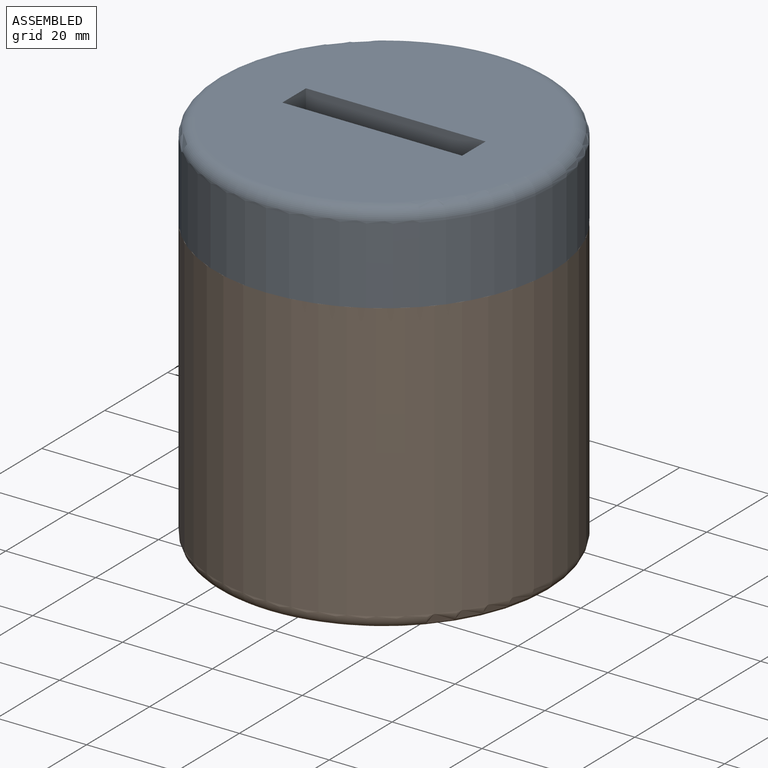
[diagram: assembled view]
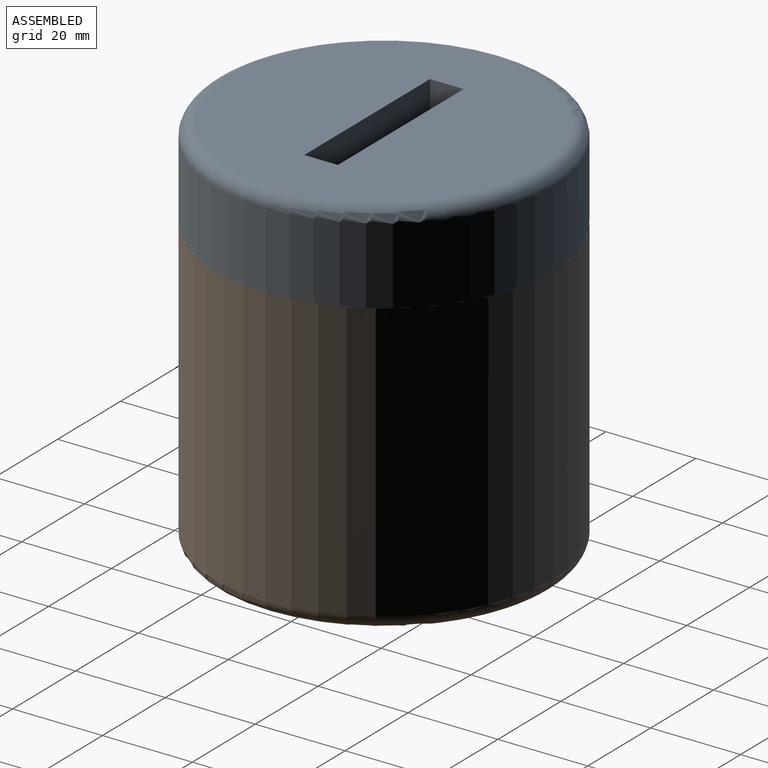
[diagram: assembled view, second angle]
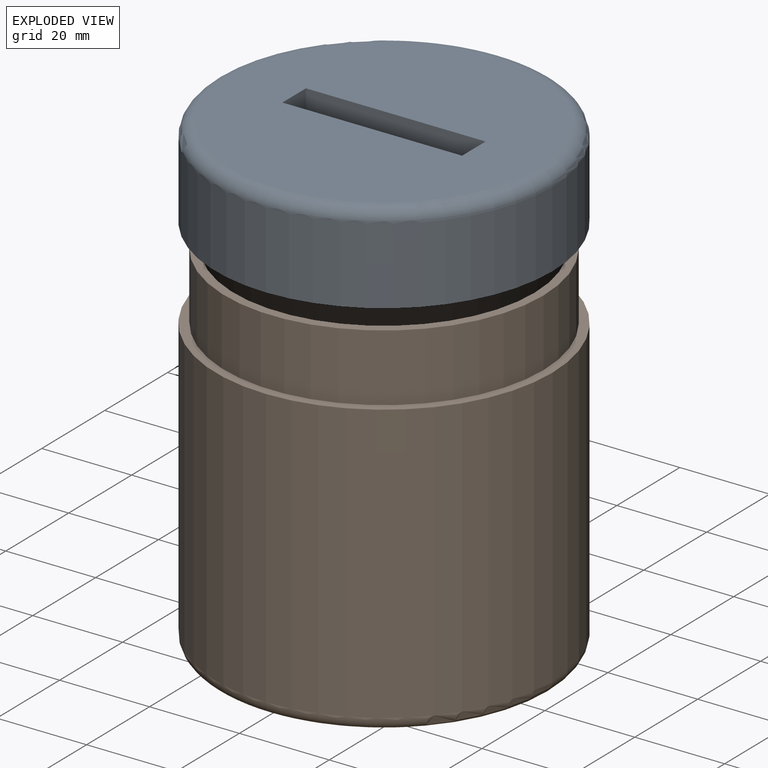
[diagram: exploded view]
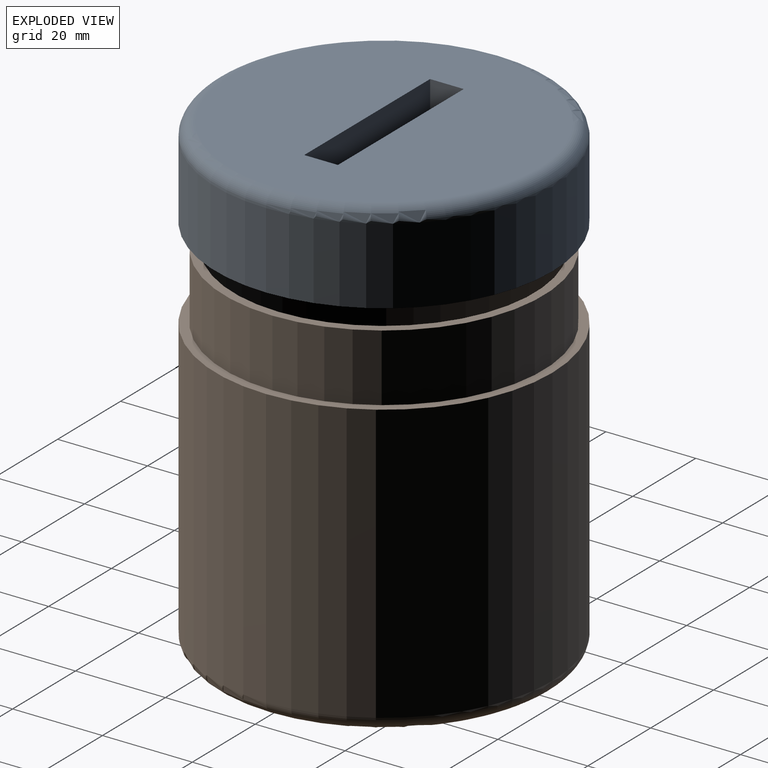
[diagram: exploded view, second angle]
ASSEMBLY  parts=2 mates=2
PART A: 15 faces, bbox 81.2x81.2x20 mm
  f0: plane 69x69mm, normal (0,0,-1), area 3439.3mm2, adj f5,f6,f7,f8,f10
  f1: plane 72x72mm, normal (0,0,1), area 2508mm2, adj f4,f11,f12,f13,f14
  f2: cylinder r=37.5mm len=75mm, axis (0,0,-1), area 4005.5mm2, adj f3,f10
  f3: plane 75x75mm, normal (0,0,1), area 346.4mm2, adj f2,f4
  f4: cylinder r=36mm len=72mm, axis (0,0,-1), area 4184.6mm2, adj f1,f3
  f5: plane 40x9mm, normal (0,-1,0), area 360mm2, adj f0,f6,f8,f9
  f6: plane 9x7.5mm, normal (-1,0,0), area 67.5mm2, adj f0,f5,f7,f9
  f7: plane 40x9mm, normal (0,1,0), area 360mm2, adj f0,f6,f8,f9
  f8: plane 9x7.5mm, normal (1,0,0), area 67.5mm2, adj f0,f5,f7,f9
  f9: plane 44x11.5mm, normal (0,0,1), area 206mm2, adj f5,f6,f7,f8,f11,f12,f13,f14
  f10: torus R=34.5mm, axis (0,0,1), area 1078.1mm2, adj f0,f2
  f11: cylinder r=7.5mm len=26.5mm, axis (0,1,0), area 199.7mm2, adj f1,f9,f12,f13
  f12: cylinder r=7.5mm len=59mm, axis (-1,0,0), area 582.6mm2, adj f1,f9,f11,f14
  f13: cylinder r=7.5mm len=59mm, axis (1,0,0), area 582.6mm2, adj f1,f9,f11,f14
  f14: cylinder r=7.5mm len=26.5mm, axis (0,-1,0), area 199.7mm2, adj f1,f9,f12,f13
PART B: 9 faces, bbox 81.2x81.2x80 mm
  f0: plane 71x71mm, normal (0,0,1), area 433.5mm2, adj f1,f3
  f1: cylinder r=33.5mm len=73mm, axis (0,0,-1), area 15365.5mm2, adj f0,f7
  f2: plane 61x61mm, normal (0,0,1), area 2922.5mm2, adj f7
  f3: cylinder r=35.5mm len=71mm, axis (0,0,1), area 3345.8mm2, adj f0,f4
  f4: plane 75x75mm, normal (0,0,1), area 458.7mm2, adj f3,f6
  f5: plane 69x69mm, normal (0,0,-1), area 3739.3mm2, adj f8
  f6: cylinder r=37.5mm len=75mm, axis (0,0,-1), area 14608.4mm2, adj f4,f8
  f7: torus R=30.5mm, axis (0,0,1), area 959.6mm2, adj f1,f2
  f8: torus R=34.5mm, axis (0,0,1), area 1078.1mm2, adj f5,f6
PLACE A rot(axis=(0,1,0),180deg) t=(2.5,2.41,109.82)mm
PLACE B t=(2.5,2.41,24.82)mm
MATE planar B.f1 <-> A.f2  axis (0,0,1) through (2.5,2.41,89.82)mm
MATE cylindrical B.f1 <-> A.f2  axis (0,0,-1) through (2.5,2.41,104.82)mm
